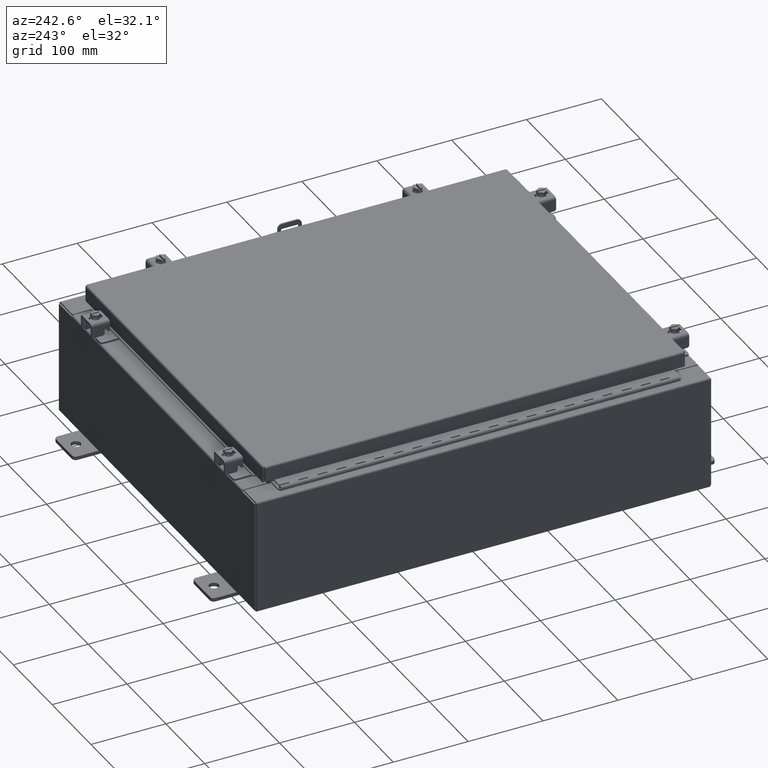
[diagram: clean part render]
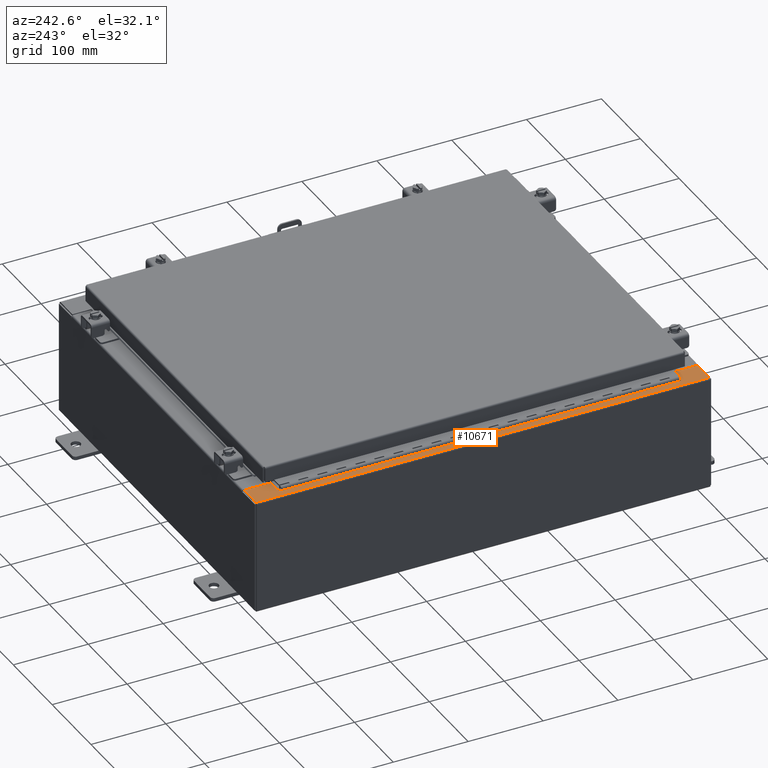
[diagram: same view with one face highlighted and labeled with its STEP entity id]
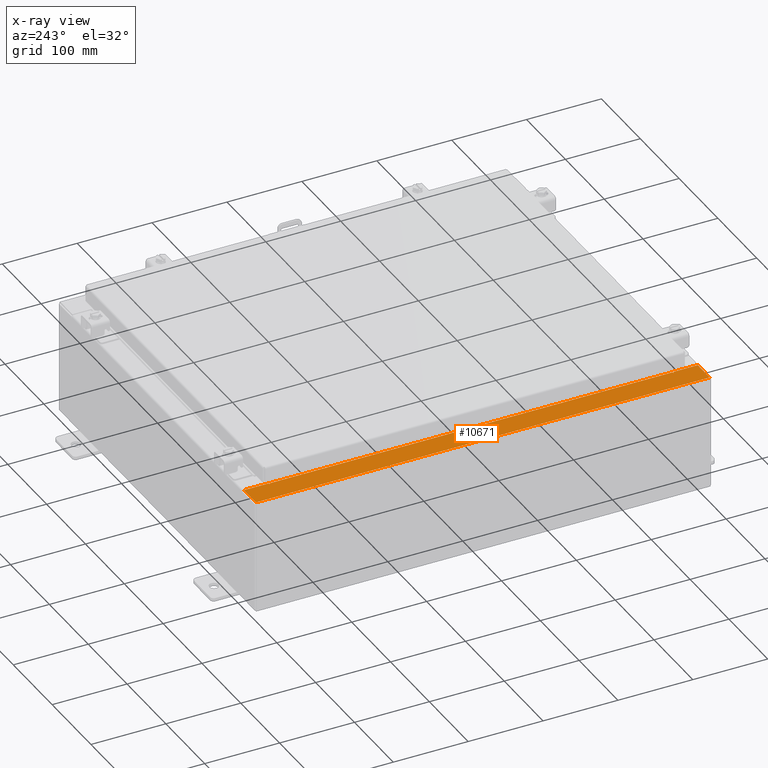
[diagram: x-ray of the same camera — body ghosted, the highlighted face saturated]
A machine part, auxiliary view. The second image highlights one B-rep face of the part: STEP entity #10671.
The next image is the same camera in x-ray: the body ghosted, the highlighted face saturated — about 0% of this face is hidden behind the body in this view.
In plain terms, the highlighted planar face has unit normal (0, 0, -1).
Its self-contained STEP definition (entity closure, byte-faithful):
#176 = LINE ( 'NONE', #12915, #12898 ) ;
#368 = CARTESIAN_POINT ( 'NONE',  ( -8.699700000000019500, 0.0000000000000000000, 5.925300000000008000 ) ) ;
#476 = DIRECTION ( 'NONE',  ( -3.120540565805878000E-031, 1.000000000000000000, -2.225807437035178000E-045 ) ) ;
#855 = VERTEX_POINT ( 'NONE', #28342 ) ;
#1083 = CARTESIAN_POINT ( 'NONE',  ( -8.699700000000019500, 0.0000000000000000000, 5.925300000000008000 ) ) ;
#1216 = DIRECTION ( 'NONE',  ( -1.000000000000000000, -4.084933421431486500E-032, -7.132762385546378400E-015 ) ) ;
#1346 = EDGE_CURVE ( 'NONE', #855, #28728, #7483, .T. ) ;
#1536 = LINE ( 'NONE', #8864, #32945 ) ;
#2118 = VERTEX_POINT ( 'NONE', #28466 ) ;
#2398 = CIRCLE ( 'NONE', #16104, 0.01867499999999949400 ) ;
#3264 = ORIENTED_EDGE ( 'NONE', *, *, #16465, .T. ) ;
#4303 = AXIS2_PLACEMENT_3D ( 'NONE', #13440, #5888, #23649 ) ;
#4408 = ORIENTED_EDGE ( 'NONE', *, *, #29221, .T. ) ;
#4566 = CARTESIAN_POINT ( 'NONE',  ( -8.699700000000019500, -10.63109999999999300, 5.925300000000008000 ) ) ;
#4794 = EDGE_CURVE ( 'NONE', #24896, #17751, #22000, .T. ) ;
#5169 = CARTESIAN_POINT ( 'NONE',  ( -8.699700000000019500, 10.63110000000000200, 5.925300000000008000 ) ) ;
#5582 = CARTESIAN_POINT ( 'NONE',  ( -8.712700000000019400, -10.59374999999999300, 5.925300000000008900 ) ) ;
#5888 = DIRECTION ( 'NONE',  ( 7.132762385546378400E-015, 0.0000000000000000000, -1.000000000000000000 ) ) ;
#6408 = FACE_OUTER_BOUND ( 'NONE', #32210, .T. ) ;
#6941 = CARTESIAN_POINT ( 'NONE',  ( -8.750050000000019400, -10.63109999999999300, 5.925300000000008900 ) ) ;
#7367 = CARTESIAN_POINT ( 'NONE',  ( -8.750050000000019400, -10.61242499999999300, 5.925300000000008900 ) ) ;
#7483 = LINE ( 'NONE', #6941, #20199 ) ;
#7509 = CARTESIAN_POINT ( 'NONE',  ( -9.912300000000021400, -11.92529999999999600, 5.925299999999999100 ) ) ;
#7815 = VECTOR ( 'NONE', #30538, 39.37007874015748100 ) ;
#7832 = VERTEX_POINT ( 'NONE', #22777 ) ;
#8495 = VECTOR ( 'NONE', #16184, 39.37007874015748100 ) ;
#8608 = DIRECTION ( 'NONE',  ( 1.000000000000000000, 0.0000000000000000000, 0.0000000000000000000 ) ) ;
#8864 = CARTESIAN_POINT ( 'NONE',  ( -4.252457061925311200E-014, 11.92530000000000000, 5.925300000000070200 ) ) ;
#8953 = EDGE_CURVE ( 'NONE', #24896, #26416, #176, .T. ) ;
#9039 = VERTEX_POINT ( 'NONE', #15686 ) ;
#9334 = ORIENTED_EDGE ( 'NONE', *, *, #24263, .F. ) ;
#9482 = DIRECTION ( 'NONE',  ( 1.000000000000000000, 0.0000000000000000000, -2.170286390200002500E-014 ) ) ;
#9755 = ORIENTED_EDGE ( 'NONE', *, *, #1346, .F. ) ;
#9899 = DIRECTION ( 'NONE',  ( 1.000000000000000000, 0.0000000000000000000, 0.0000000000000000000 ) ) ;
#10394 = CARTESIAN_POINT ( 'NONE',  ( -8.712700000000019400, 10.59375000000000200, 5.925300000000008900 ) ) ;
#10671 = ADVANCED_FACE ( 'NONE', ( #6408 ), #21090, .F. ) ;
#10757 = ORIENTED_EDGE ( 'NONE', *, *, #18633, .F. ) ;
#11207 = DIRECTION ( 'NONE',  ( -3.120540565805878000E-031, 1.000000000000000000, -2.225807437035178000E-045 ) ) ;
#11916 = VECTOR ( 'NONE', #30768, 39.37007874015748100 ) ;
#12244 = EDGE_CURVE ( 'NONE', #31809, #2118, #31806, .T. ) ;
#12503 = AXIS2_PLACEMENT_3D ( 'NONE', #27998, #12768, #30565 ) ;
#12768 = DIRECTION ( 'NONE',  ( -7.132762385546378400E-015, -0.0000000000000000000, 1.000000000000000000 ) ) ;
#12898 = VECTOR ( 'NONE', #30707, 39.37007874015748100 ) ;
#12915 = CARTESIAN_POINT ( 'NONE',  ( -9.912300000000019700, 11.92530000000000000, 5.925299999999999100 ) ) ;
#13097 = CARTESIAN_POINT ( 'NONE',  ( -9.912300000000021400, 11.92530000000000000, 5.925299999999999100 ) ) ;
#13440 = CARTESIAN_POINT ( 'NONE',  ( -4.252457061925311200E-014, 0.0000000000000000000, 5.925300000000070200 ) ) ;
#13473 = EDGE_CURVE ( 'NONE', #13961, #7832, #28897, .T. ) ;
#13961 = VERTEX_POINT ( 'NONE', #5582 ) ;
#15313 = VECTOR ( 'NONE', #26112, 39.37007874015748100 ) ;
#15469 = VERTEX_POINT ( 'NONE', #24815 ) ;
#15686 = CARTESIAN_POINT ( 'NONE',  ( -8.750050000000019400, 10.63109999999999800, 5.925300000000008000 ) ) ;
#16104 = AXIS2_PLACEMENT_3D ( 'NONE', #7367, #25141, #9899 ) ;
#16184 = DIRECTION ( 'NONE',  ( 1.000000000000000000, 1.783190596386595000E-015, 7.132762385546378400E-015 ) ) ;
#16465 = EDGE_CURVE ( 'NONE', #17751, #28728, #32733, .T. ) ;
#16803 = CARTESIAN_POINT ( 'NONE',  ( -8.712700000000019400, 10.59375000000000000, 5.925300000000008900 ) ) ;
#17027 = CARTESIAN_POINT ( 'NONE',  ( -8.699700000000019500, -11.92529999999999500, 5.925300000000008000 ) ) ;
#17751 = VERTEX_POINT ( 'NONE', #17027 ) ;
#18182 = ORIENTED_EDGE ( 'NONE', *, *, #23576, .F. ) ;
#18604 = CARTESIAN_POINT ( 'NONE',  ( -2.125948779990764000E-014, -11.92529999999998000, 5.925300000000070200 ) ) ;
#18633 = EDGE_CURVE ( 'NONE', #28609, #13961, #18643, .T. ) ;
#18643 = LINE ( 'NONE', #10394, #11916 ) ;
#18827 = CARTESIAN_POINT ( 'NONE',  ( -8.750050000000019400, 10.59375000000000000, 5.925300000000008900 ) ) ;
#19167 = VECTOR ( 'NONE', #8608, 39.37007874015748100 ) ;
#19180 = VECTOR ( 'NONE', #11207, 39.37007874015748100 ) ;
#19623 = ORIENTED_EDGE ( 'NONE', *, *, #12244, .T. ) ;
#20199 = VECTOR ( 'NONE', #9482, 39.37007874015748100 ) ;
#21090 = PLANE ( 'NONE',  #4303 ) ;
#21238 = EDGE_CURVE ( 'NONE', #15469, #28609, #32727, .T. ) ;
#22000 = LINE ( 'NONE', #18604, #8495 ) ;
#22777 = CARTESIAN_POINT ( 'NONE',  ( -8.750050000000019400, -10.59374999999999300, 5.925300000000008000 ) ) ;
#23250 = ORIENTED_EDGE ( 'NONE', *, *, #21238, .F. ) ;
#23525 = CARTESIAN_POINT ( 'NONE',  ( -8.699700000000019500, 10.63110000000000200, 5.925300000000008000 ) ) ;
#23576 = EDGE_CURVE ( 'NONE', #7832, #855, #2398, .T. ) ;
#23649 = DIRECTION ( 'NONE',  ( -1.000000000000000000, 0.0000000000000000000, -7.132762385546378400E-015 ) ) ;
#24208 = VECTOR ( 'NONE', #476, 39.37007874015748100 ) ;
#24263 = EDGE_CURVE ( 'NONE', #9039, #15469, #24611, .T. ) ;
#24611 = CIRCLE ( 'NONE', #12503, 0.01867499999999949400 ) ;
#24815 = CARTESIAN_POINT ( 'NONE',  ( -8.750050000000019400, 10.59375000000000000, 5.925300000000008000 ) ) ;
#24896 = VERTEX_POINT ( 'NONE', #7509 ) ;
#25141 = DIRECTION ( 'NONE',  ( -7.132762385546378400E-015, -0.0000000000000000000, 1.000000000000000000 ) ) ;
#25368 = ORIENTED_EDGE ( 'NONE', *, *, #31339, .F. ) ;
#26112 = DIRECTION ( 'NONE',  ( -1.000000000000000000, -4.340572780400004900E-014, 2.170286390200002500E-014 ) ) ;
#26416 = VERTEX_POINT ( 'NONE', #13097 ) ;
#27583 = ORIENTED_EDGE ( 'NONE', *, *, #13473, .F. ) ;
#27970 = CARTESIAN_POINT ( 'NONE',  ( -8.712700000000019400, -10.59374999999999300, 5.925300000000008900 ) ) ;
#27998 = CARTESIAN_POINT ( 'NONE',  ( -8.750050000000019400, 10.61242500000000000, 5.925300000000008900 ) ) ;
#28342 = CARTESIAN_POINT ( 'NONE',  ( -8.750050000000019400, -10.63109999999999300, 5.925300000000008000 ) ) ;
#28466 = CARTESIAN_POINT ( 'NONE',  ( -8.699700000000019500, 11.92530000000000000, 5.925300000000008000 ) ) ;
#28609 = VERTEX_POINT ( 'NONE', #16803 ) ;
#28672 = ORIENTED_EDGE ( 'NONE', *, *, #8953, .F. ) ;
#28728 = VERTEX_POINT ( 'NONE', #4566 ) ;
#28842 = LINE ( 'NONE', #23525, #15313 ) ;
#28897 = LINE ( 'NONE', #27970, #7815 ) ;
#29221 = EDGE_CURVE ( 'NONE', #2118, #26416, #1536, .T. ) ;
#30538 = DIRECTION ( 'NONE',  ( -1.000000000000000000, 0.0000000000000000000, 0.0000000000000000000 ) ) ;
#30565 = DIRECTION ( 'NONE',  ( 1.000000000000000000, 0.0000000000000000000, 0.0000000000000000000 ) ) ;
#30707 = DIRECTION ( 'NONE',  ( 9.163200904511462000E-017, 1.000000000000000000, 6.535893474290389800E-031 ) ) ;
#30768 = DIRECTION ( 'NONE',  ( -0.0000000000000000000, -1.000000000000000000, -0.0000000000000000000 ) ) ;
#31339 = EDGE_CURVE ( 'NONE', #31809, #9039, #28842, .T. ) ;
#31806 = LINE ( 'NONE', #368, #24208 ) ;
#31809 = VERTEX_POINT ( 'NONE', #5169 ) ;
#32154 = ORIENTED_EDGE ( 'NONE', *, *, #4794, .T. ) ;
#32210 = EDGE_LOOP ( 'NONE', ( #25368, #19623, #4408, #28672, #32154, #3264, #9755, #18182, #27583, #10757, #23250, #9334 ) ) ;
#32727 = LINE ( 'NONE', #18827, #19167 ) ;
#32733 = LINE ( 'NONE', #1083, #19180 ) ;
#32945 = VECTOR ( 'NONE', #1216, 39.37007874015748100 ) ;